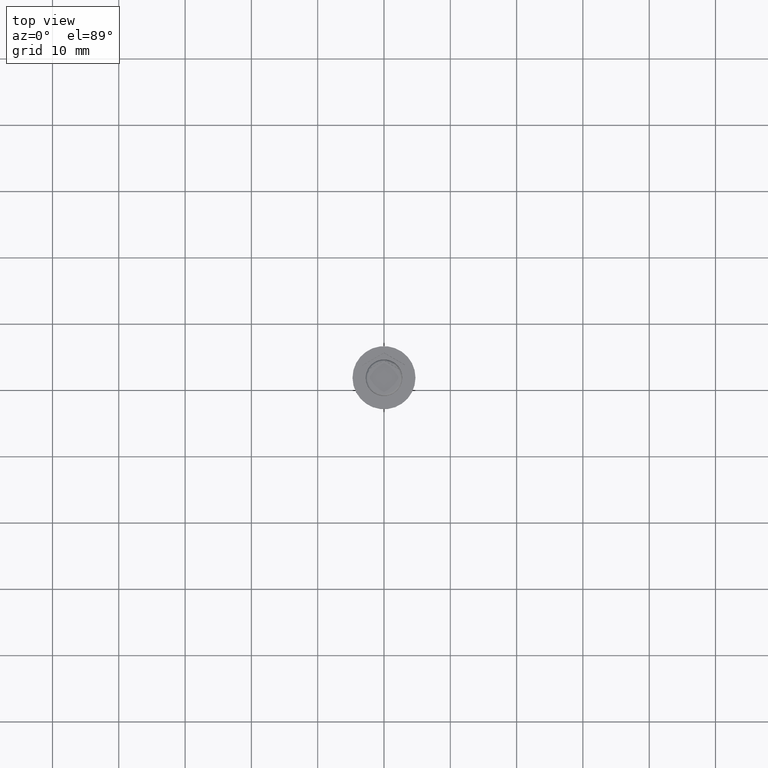
[diagram: clean part render]
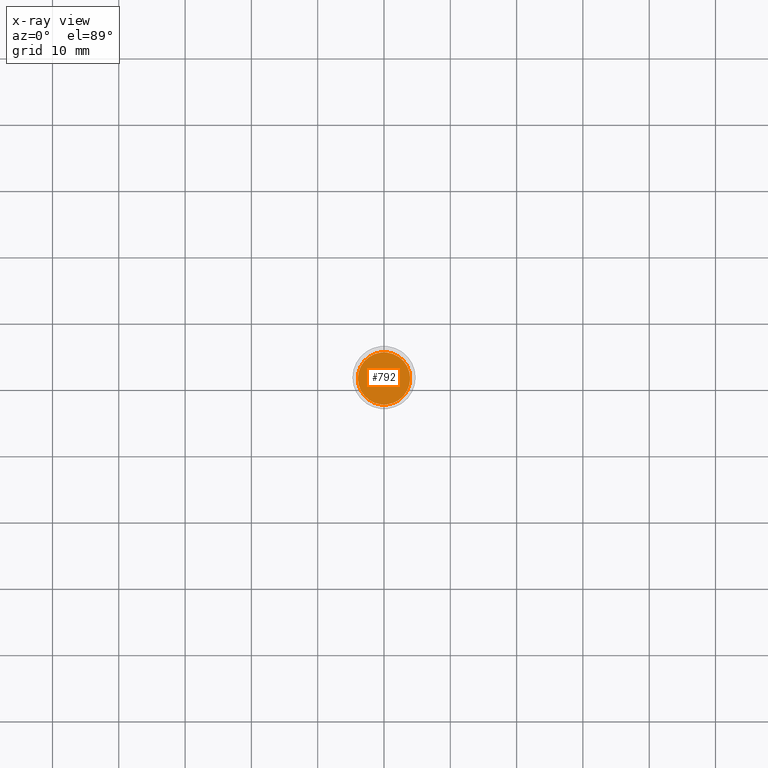
[diagram: x-ray — body ghosted, one internal face saturated and labeled with its STEP entity id]
A machine part, top view, then the same camera in x-ray: the body is ghosted and one INTERNAL B-rep face — a face not visible from any outside direction — is saturated and labeled: STEP entity #792.
In plain terms, the highlighted planar face has unit normal (0, 0, -1).
Its self-contained STEP definition (entity closure, byte-faithful):
#152 = EDGE_LOOP ( 'NONE', ( #397, #2124 ) ) ;
#397 = ORIENTED_EDGE ( 'NONE', *, *, #773, .T. ) ;
#437 = CARTESIAN_POINT ( 'NONE',  ( 0.000000000000000000, 0.000000000000000000, -7.500000000000000000 ) ) ;
#453 = CARTESIAN_POINT ( 'NONE',  ( 0.000000000000000000, 0.000000000000000000, -7.500000000000000000 ) ) ;
#773 = EDGE_CURVE ( 'NONE', #2030, #1187, #2183, .T. ) ;
#792 = ADVANCED_FACE ( 'NONE', ( #1175 ), #1575, .F. ) ;
#800 = DIRECTION ( 'NONE',  ( -0.000000000000000000, -0.000000000000000000, 1.000000000000000000 ) ) ;
#814 = CARTESIAN_POINT ( 'NONE',  ( -3.950000000000001066, 0.000000000000000000, -7.500000000000000000 ) ) ;
#947 = AXIS2_PLACEMENT_3D ( 'NONE', #437, #2118, #2291 ) ;
#1013 = CARTESIAN_POINT ( 'NONE',  ( 3.950000000000001066, 5.021051876504150343E-16, -7.500000000000000000 ) ) ;
#1027 = CARTESIAN_POINT ( 'NONE',  ( 0.000000000000000000, 0.000000000000000000, -7.500000000000000000 ) ) ;
#1169 = DIRECTION ( 'NONE',  ( -1.000000000000000000, 0.000000000000000000, 0.000000000000000000 ) ) ;
#1175 = FACE_OUTER_BOUND ( 'NONE', #152, .T. ) ;
#1187 = VERTEX_POINT ( 'NONE', #1013 ) ;
#1304 = AXIS2_PLACEMENT_3D ( 'NONE', #1027, #1745, #1939 ) ;
#1429 = AXIS2_PLACEMENT_3D ( 'NONE', #453, #800, #1169 ) ;
#1575 = PLANE ( 'NONE',  #1304 ) ;
#1615 = CIRCLE ( 'NONE', #1429, 3.950000000000001066 ) ;
#1745 = DIRECTION ( 'NONE',  ( 0.000000000000000000, 0.000000000000000000, -1.000000000000000000 ) ) ;
#1939 = DIRECTION ( 'NONE',  ( -1.000000000000000000, 0.000000000000000000, -0.000000000000000000 ) ) ;
#2030 = VERTEX_POINT ( 'NONE', #814 ) ;
#2089 = EDGE_CURVE ( 'NONE', #1187, #2030, #1615, .T. ) ;
#2118 = DIRECTION ( 'NONE',  ( -0.000000000000000000, -0.000000000000000000, 1.000000000000000000 ) ) ;
#2124 = ORIENTED_EDGE ( 'NONE', *, *, #2089, .T. ) ;
#2183 = CIRCLE ( 'NONE', #947, 3.950000000000001066 ) ;
#2291 = DIRECTION ( 'NONE',  ( -1.000000000000000000, 0.000000000000000000, 0.000000000000000000 ) ) ;